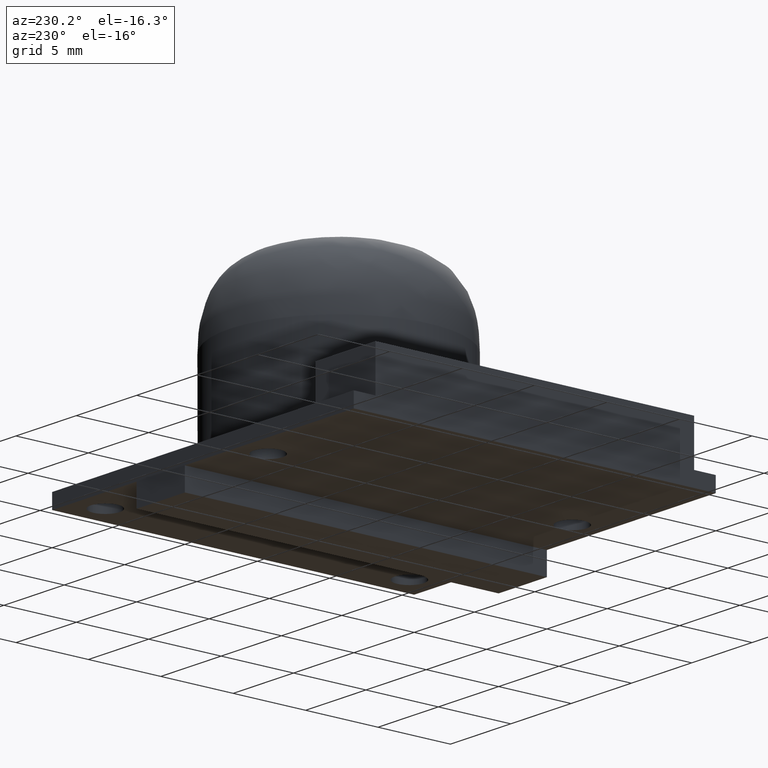
[diagram: clean part render]
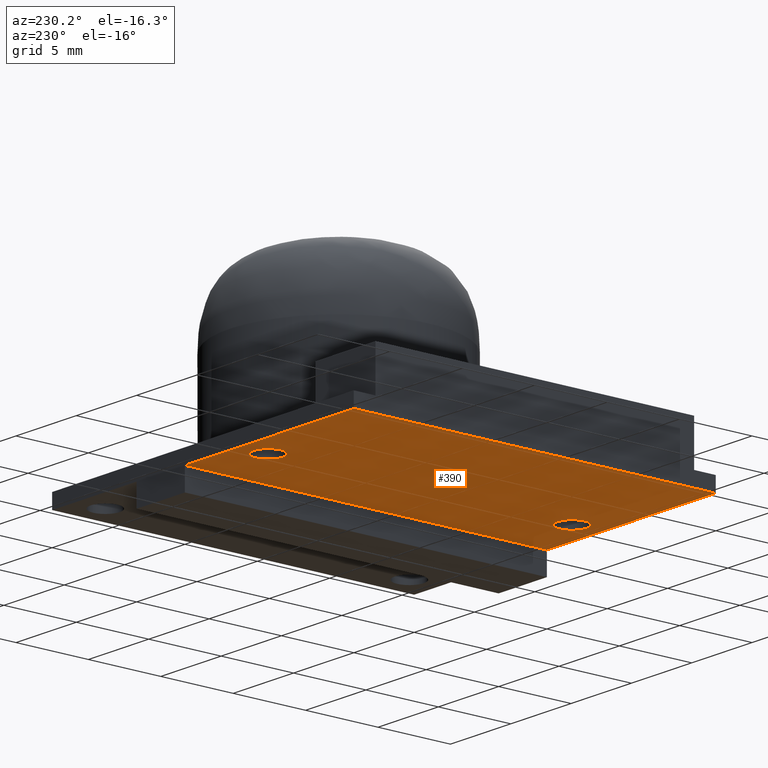
[diagram: same view with one face highlighted and labeled with its STEP entity id]
A machine part, auxiliary view. The second image highlights one B-rep face of the part: STEP entity #390.
In plain terms, the highlighted planar face has unit normal (0, 0, 1).
Its self-contained STEP definition (entity closure, byte-faithful):
#15=FACE_BOUND('',#163,.T.);
#16=FACE_BOUND('',#164,.T.);
#25=CIRCLE('',#426,1.);
#26=CIRCLE('',#427,1.);
#37=LINE('',#707,#78);
#44=LINE('',#722,#85);
#45=LINE('',#724,#86);
#46=LINE('',#725,#87);
#78=VECTOR('',#462,10.);
#85=VECTOR('',#475,10.);
#86=VECTOR('',#476,10.);
#87=VECTOR('',#477,10.);
#124=PLANE('',#425);
#141=FACE_OUTER_BOUND('',#162,.T.);
#162=EDGE_LOOP('',(#298,#299,#300,#301));
#163=EDGE_LOOP('',(#302));
#164=EDGE_LOOP('',(#303));
#192=VERTEX_POINT('',#700);
#195=VERTEX_POINT('',#705);
#200=VERTEX_POINT('',#721);
#201=VERTEX_POINT('',#723);
#202=VERTEX_POINT('',#726);
#203=VERTEX_POINT('',#728);
#232=EDGE_CURVE('',#192,#195,#37,.T.);
#239=EDGE_CURVE('',#200,#195,#44,.T.);
#240=EDGE_CURVE('',#201,#200,#45,.T.);
#241=EDGE_CURVE('',#192,#201,#46,.T.);
#242=EDGE_CURVE('',#202,#202,#25,.T.);
#243=EDGE_CURVE('',#203,#203,#26,.T.);
#298=ORIENTED_EDGE('',*,*,#232,.T.);
#299=ORIENTED_EDGE('',*,*,#239,.F.);
#300=ORIENTED_EDGE('',*,*,#240,.F.);
#301=ORIENTED_EDGE('',*,*,#241,.F.);
#302=ORIENTED_EDGE('',*,*,#242,.F.);
#303=ORIENTED_EDGE('',*,*,#243,.F.);
#390=ADVANCED_FACE('',(#141,#15,#16),#124,.F.);
#425=AXIS2_PLACEMENT_3D('',#720,#473,#474);
#426=AXIS2_PLACEMENT_3D('',#727,#478,#479);
#427=AXIS2_PLACEMENT_3D('',#729,#480,#481);
#462=DIRECTION('',(0.,-1.,0.));
#473=DIRECTION('center_axis',(0.,0.,1.));
#474=DIRECTION('ref_axis',(1.,0.,0.));
#475=DIRECTION('',(1.,0.,0.));
#476=DIRECTION('',(0.,-1.,0.));
#477=DIRECTION('',(-1.,0.,0.));
#478=DIRECTION('center_axis',(0.,0.,-1.));
#479=DIRECTION('ref_axis',(1.,0.,0.));
#480=DIRECTION('center_axis',(0.,0.,-1.));
#481=DIRECTION('ref_axis',(1.,0.,0.));
#700=CARTESIAN_POINT('',(14.0000000000016,25.,0.));
#705=CARTESIAN_POINT('',(14.0000000000016,0.,0.));
#707=CARTESIAN_POINT('',(14.0000000000016,6.25,0.));
#720=CARTESIAN_POINT('Origin',(12.5,12.5,0.));
#721=CARTESIAN_POINT('',(0.,0.,0.));
#722=CARTESIAN_POINT('',(0.,0.,0.));
#723=CARTESIAN_POINT('',(0.,25.,0.));
#724=CARTESIAN_POINT('',(0.,25.,0.));
#725=CARTESIAN_POINT('',(25.,25.,0.));
#726=CARTESIAN_POINT('',(8.49999999999839,22.9999999999946,0.));
#727=CARTESIAN_POINT('Origin',(9.49999999999839,22.9999999999946,0.));
#728=CARTESIAN_POINT('',(8.49999999999839,2.00000000000534,0.));
#729=CARTESIAN_POINT('Origin',(9.49999999999839,2.00000000000534,0.));